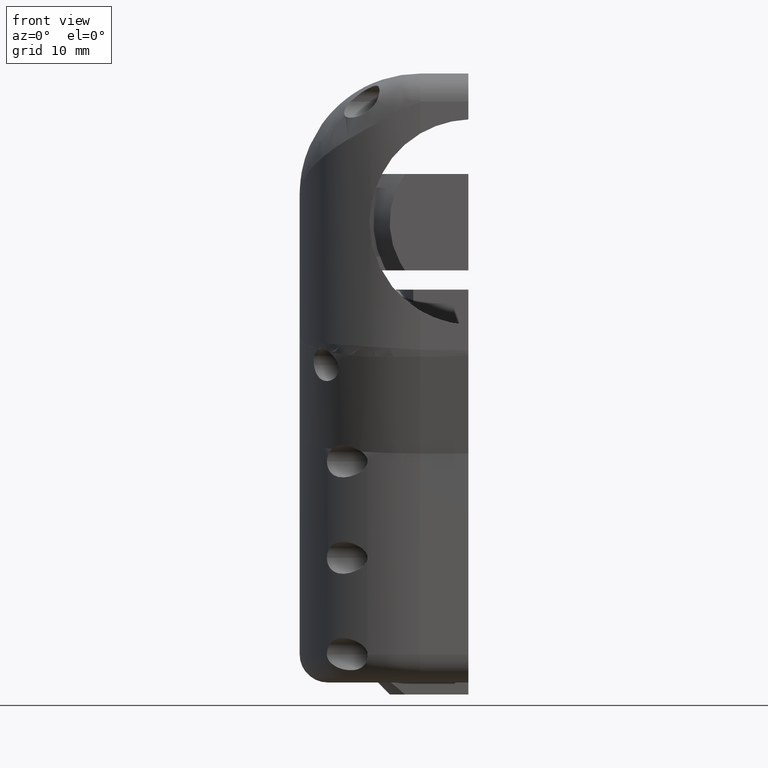
[diagram: clean part render]
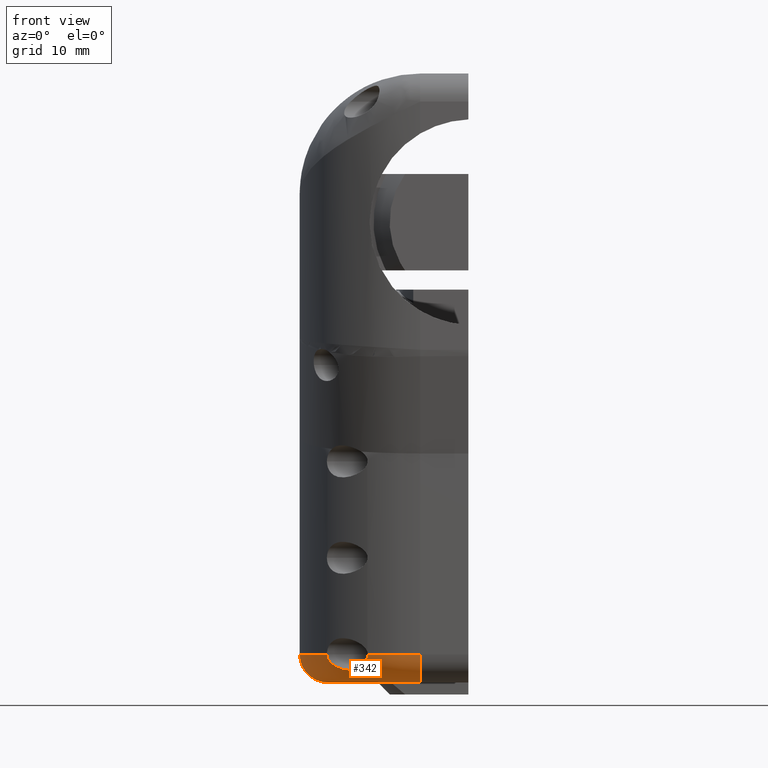
[diagram: same view with one face highlighted and labeled with its STEP entity id]
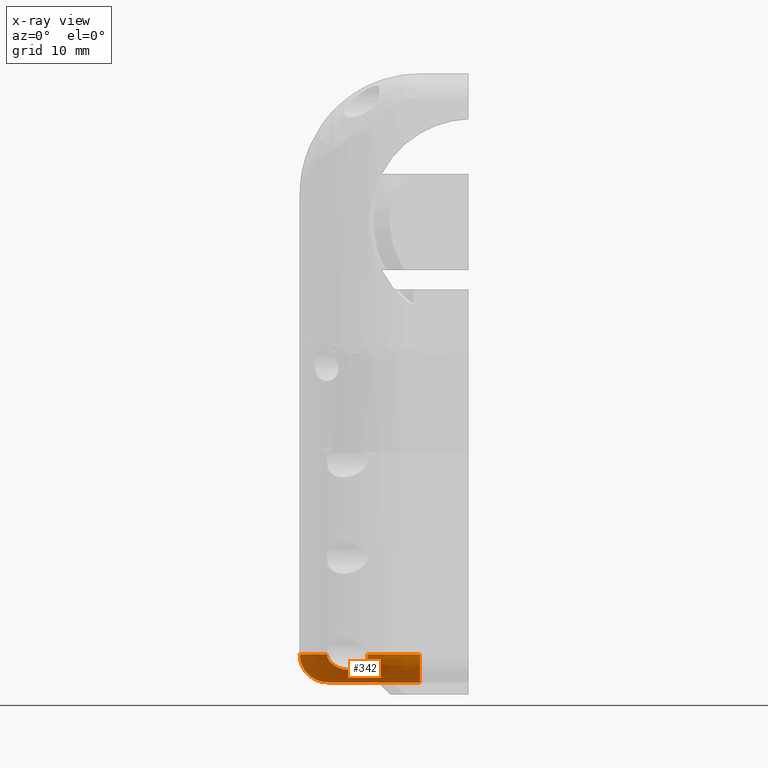
[diagram: x-ray of the same camera — body ghosted, the highlighted face saturated]
A machine part, front view. The second image highlights one B-rep face of the part: STEP entity #342.
The next image is the same camera in x-ray: the body ghosted, the highlighted face saturated — about 0% of this face is hidden behind the body in this view.
In plain terms, the highlighted toroidal blend (fillet) surface has major radius 11.5 mm and minor (blend) radius 3.5 mm.
Its self-contained STEP definition (entity closure, byte-faithful):
#169=TOROIDAL_SURFACE('',#5999,11.5,3.5);
#342=ADVANCED_FACE('',(#594),#169,.T.);
#594=FACE_OUTER_BOUND('',#864,.F.);
#864=EDGE_LOOP('',(#1421,#1422,#1423,#1424,#1425,#1426,#1427));
#1421=ORIENTED_EDGE('',*,*,#4747,.F.);
#1422=ORIENTED_EDGE('',*,*,#4729,.F.);
#1423=ORIENTED_EDGE('',*,*,#4723,.F.);
#1424=ORIENTED_EDGE('',*,*,#4536,.F.);
#1425=ORIENTED_EDGE('',*,*,#4730,.F.);
#1426=ORIENTED_EDGE('',*,*,#4748,.T.);
#1427=ORIENTED_EDGE('',*,*,#4640,.T.);
#3514=CIRCLE('',#5828,11.5);
#3530=CIRCLE('',#5844,15.);
#3532=CIRCLE('',#5846,15.);
#3533=CIRCLE('',#5847,15.);
#3538=CIRCLE('',#5852,3.5);
#3539=CIRCLE('',#5853,3.5);
#4536=EDGE_CURVE('',#5546,#5545,#5161,.T.);
#4640=EDGE_CURVE('',#5439,#5438,#3514,.T.);
#4723=EDGE_CURVE('',#5545,#5393,#3530,.T.);
#4729=EDGE_CURVE('',#5393,#5436,#3532,.T.);
#4730=EDGE_CURVE('',#5440,#5546,#3533,.T.);
#4747=EDGE_CURVE('',#5436,#5438,#3538,.T.);
#4748=EDGE_CURVE('',#5440,#5439,#3539,.T.);
#5161=B_SPLINE_CURVE_WITH_KNOTS('',3,(#8361,#8362,#8363,#8364,#8365,#8366,
#8367,#8368,#8369,#8370,#8371,#8372,#8373,#8374,#8375,#8376,#8377,#8378,
#8379,#8380,#8381,#8382,#8383,#8384,#8385,#8386,#8387),.UNSPECIFIED.,.F.,
 .F.,(4,1,1,1,1,1,1,1,1,1,1,1,1,1,1,1,1,1,1,1,1,1,1,1,4),(0.,0.0318214424629626,
0.0549755392666202,0.083402956490319,0.113002200700103,0.1442780169689,0.177842867735733,
0.21443617523115,0.254993952186102,0.300567867804981,0.352058740161877,0.409562189320674,
0.47166871767804,0.535605561150255,0.598185403363547,0.657071614600567,0.711142730340729,
0.760204993529528,0.80452354264222,0.844513611180886,0.880676255656804,0.913577379800402,
0.943896793776107,0.967891153689211,1.),.UNSPECIFIED.);
#5393=VERTEX_POINT('',#7741);
#5436=VERTEX_POINT('',#7784);
#5438=VERTEX_POINT('',#7786);
#5439=VERTEX_POINT('',#7787);
#5440=VERTEX_POINT('',#7788);
#5545=VERTEX_POINT('',#7893);
#5546=VERTEX_POINT('',#7894);
#5828=AXIS2_PLACEMENT_3D('',#9160,#6476,#6477);
#5844=AXIS2_PLACEMENT_3D('',#9335,#6565,#6566);
#5846=AXIS2_PLACEMENT_3D('',#9378,#6569,#6570);
#5847=AXIS2_PLACEMENT_3D('',#9379,#6571,#6572);
#5852=AXIS2_PLACEMENT_3D('',#9490,#6581,#6582);
#5853=AXIS2_PLACEMENT_3D('',#9491,#6583,#6584);
#5999=AXIS2_PLACEMENT_3D('',#10153,#7137,#7138);
#6476=DIRECTION('',(0.,0.,-1.));
#6477=DIRECTION('',(0.,-1.,0.));
#6565=DIRECTION('',(0.,0.,-1.));
#6566=DIRECTION('',(-0.773873946817292,-0.633339651717329,0.));
#6569=DIRECTION('',(0.,0.,-1.));
#6570=DIRECTION('',(-0.994987437104241,-0.100000000023669,0.));
#6571=DIRECTION('',(0.,0.,-1.));
#6572=DIRECTION('',(0.,-1.,0.));
#6581=DIRECTION('',(0.,-1.,0.));
#6582=DIRECTION('',(-1.,0.,0.));
#6583=DIRECTION('',(1.,0.,0.));
#6584=DIRECTION('',(0.,-1.,0.));
#7137=DIRECTION('',(0.,0.,-1.));
#7138=DIRECTION('',(0.623489801858733,-0.78183148246803,0.));
#7741=CARTESIAN_POINT('',(-20.9248115565636,-5.00000000035492,3.50000000000023));
#7784=CARTESIAN_POINT('',(-21.,-3.49999999999989,3.50000000000006));
#7786=CARTESIAN_POINT('',(-17.5,-3.49999999999987,0.));
#7787=CARTESIAN_POINT('',(-6.0000000000004,-14.9999999999999,0.));
#7788=CARTESIAN_POINT('',(-6.0000000000003,-18.4999999999999,3.50000000000001));
#7893=CARTESIAN_POINT('',(-17.6081182720967,-13.0000836932233,3.50001346887406));
#7894=CARTESIAN_POINT('',(-12.5385343700299,-16.9999099363822,3.5000100558927));
#8361=CARTESIAN_POINT('',(-12.5385141744322,-16.9999088079375,3.50003060216393));
#8362=CARTESIAN_POINT('',(-12.5403069396665,-16.9990419757647,3.41154516315422));
#8363=CARTESIAN_POINT('',(-12.5510411506513,-16.9873375835395,3.2590310292487));
#8364=CARTESIAN_POINT('',(-12.5872070492272,-16.9437957117349,3.03345768743257));
#8365=CARTESIAN_POINT('',(-12.6398226766217,-16.8794065396362,2.8228479519518));
#8366=CARTESIAN_POINT('',(-12.7181119232589,-16.7844054754474,2.60628163257389));
#8367=CARTESIAN_POINT('',(-12.8220499951531,-16.6614906485495,2.39774591306334));
#8368=CARTESIAN_POINT('',(-12.95598447352,-16.5095975917727,2.20015896413664));
#8369=CARTESIAN_POINT('',(-13.1244028948418,-16.3273366962123,2.01648955070159));
#8370=CARTESIAN_POINT('',(-13.3330349018422,-16.1128258022906,1.85043761841104));
#8371=CARTESIAN_POINT('',(-13.5910969948942,-15.866217086761,1.70957848910099));
#8372=CARTESIAN_POINT('',(-13.9024518426788,-15.589122597823,1.60070428750093));
#8373=CARTESIAN_POINT('',(-14.2660247848891,-15.2883319652385,1.53259994073833));
#8374=CARTESIAN_POINT('',(-14.6707891265645,-14.9767275143485,1.51198162132804));
#8375=CARTESIAN_POINT('',(-15.0948086634003,-14.6680571407406,1.53969553902737));
#8376=CARTESIAN_POINT('',(-15.5145207964077,-14.3764825461825,1.61205596789059));
#8377=CARTESIAN_POINT('',(-15.9094563827615,-14.1103182364436,1.72145473555471));
#8378=CARTESIAN_POINT('',(-16.2673436716938,-13.8734661093994,1.86025708698665));
#8379=CARTESIAN_POINT('',(-16.583397677188,-13.6669544835013,2.02164824396179));
#8380=CARTESIAN_POINT('',(-16.85620506354,-13.489959648643,2.20122437438272));
#8381=CARTESIAN_POINT('',(-17.0863493542103,-13.3406909328096,2.39477440697554));
#8382=CARTESIAN_POINT('',(-17.2745043330325,-13.2186960362606,2.60022635922021));
#8383=CARTESIAN_POINT('',(-17.4213979876095,-13.1233082025376,2.81540525640897));
#8384=CARTESIAN_POINT('',(-17.5220943394035,-13.0576503662163,3.02740790937766));
#8385=CARTESIAN_POINT('',(-17.5896587233587,-13.0131339159402,3.25512657864176));
#8386=CARTESIAN_POINT('',(-17.6074638185721,-13.0009361417448,3.41068400822781));
#8387=CARTESIAN_POINT('',(-17.608136411476,-13.0000802420547,3.50004079641733));
#9160=CARTESIAN_POINT('',(-6.00000000000001,-3.49999999999987,0.));
#9335=CARTESIAN_POINT('',(-6.00000000000001,-3.49999999999989,3.50000000000001));
#9378=CARTESIAN_POINT('',(-6.00000000000001,-3.49999999999989,3.50000000000001));
#9379=CARTESIAN_POINT('',(-6.00000000000001,-3.49999999999989,3.50000000000001));
#9490=CARTESIAN_POINT('',(-17.5,-3.49999999999989,3.49999999999999));
#9491=CARTESIAN_POINT('',(-5.99999999999999,-14.9999999999998,3.50000000000001));
#10153=CARTESIAN_POINT('',(-6.00000000000001,-3.49999999999987,3.50000000000001));